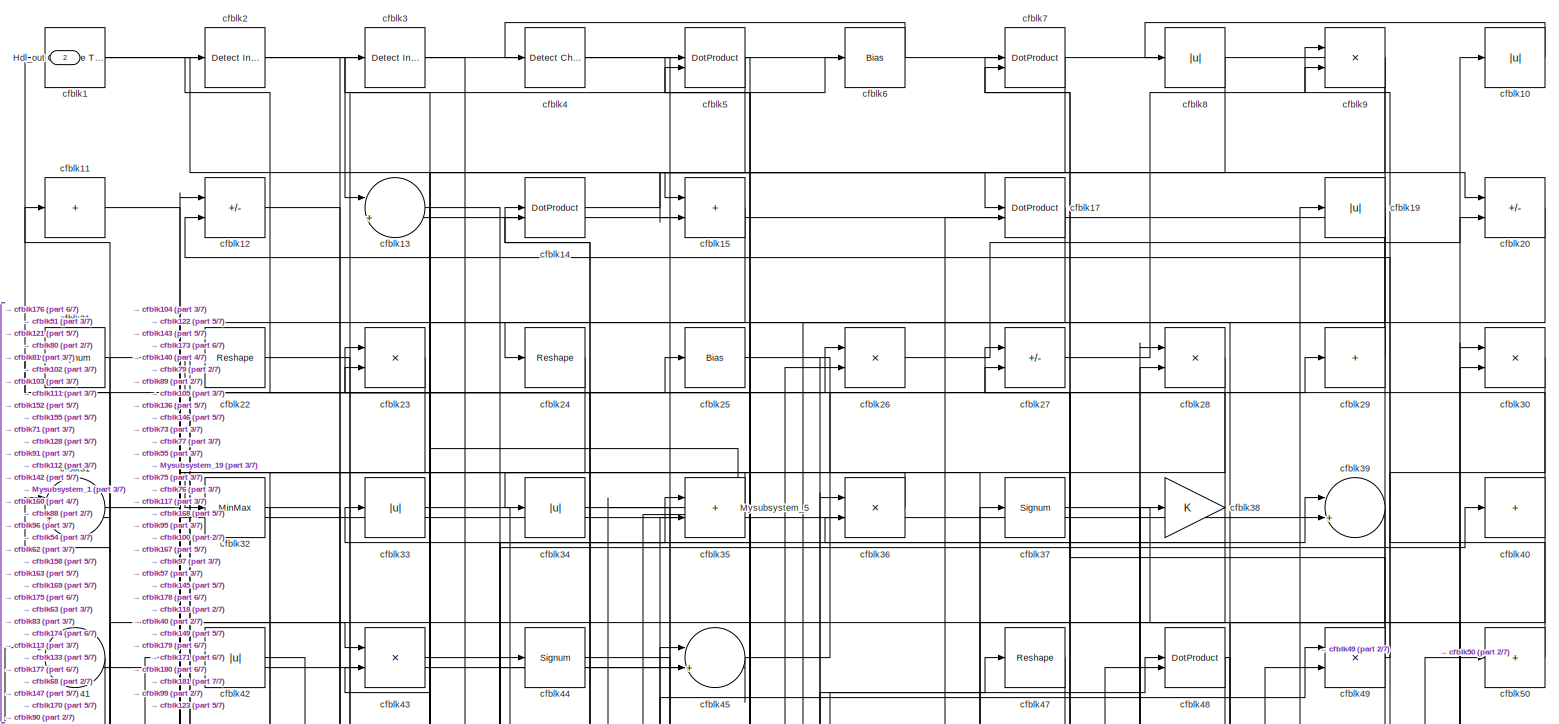
[diagram: root canvas - part 1/7, full width, top band]
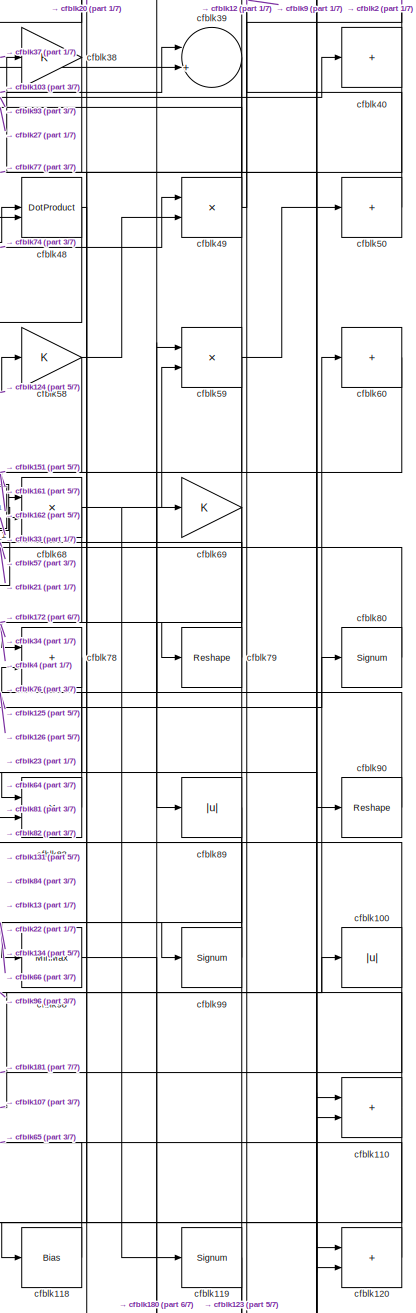
[diagram: root canvas - part 2/7, middle right region]
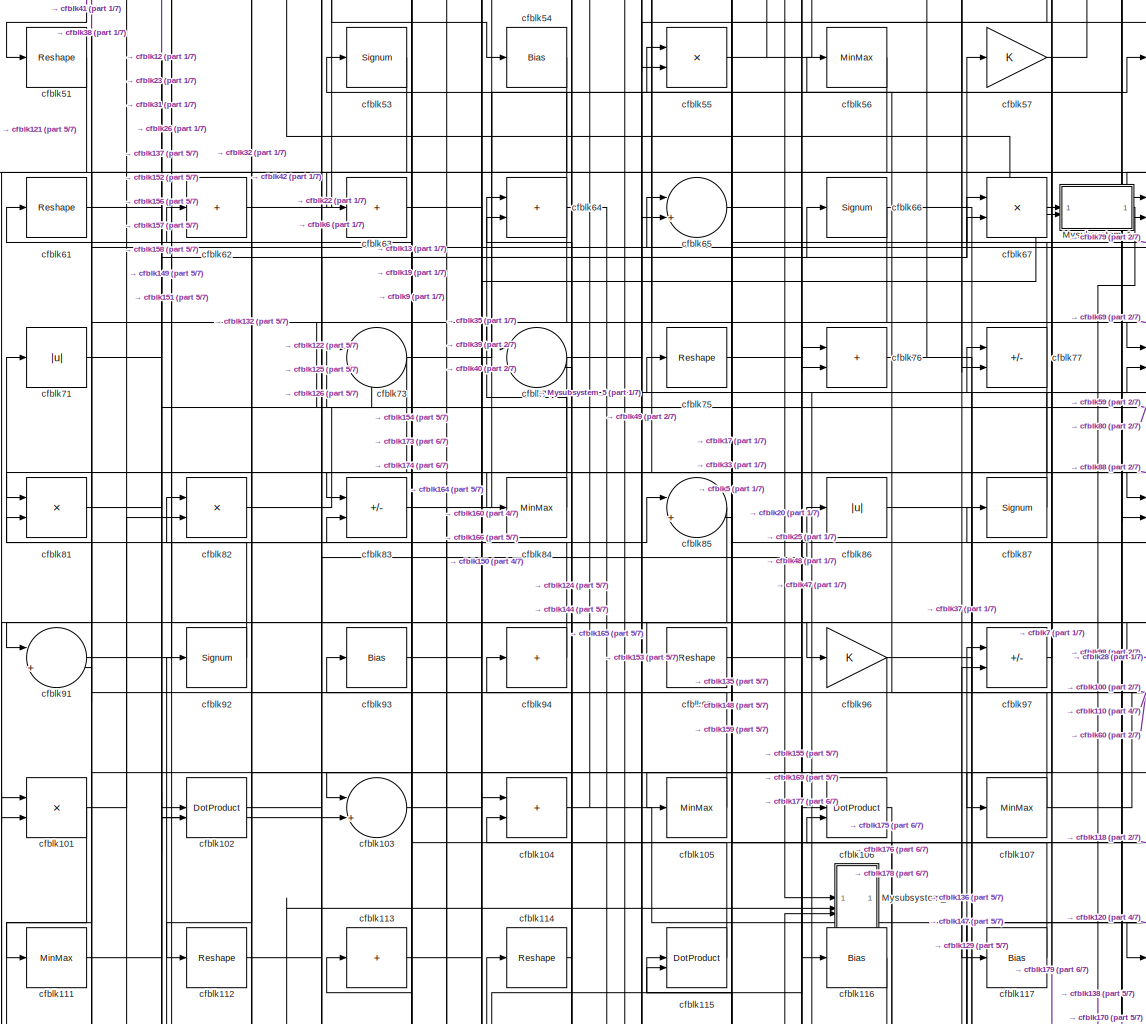
[diagram: root canvas - part 3/7, full width, middle band]
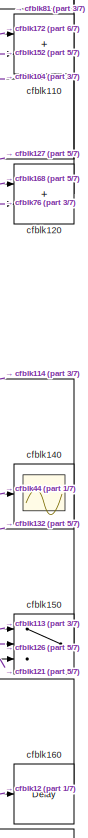
[diagram: root canvas - part 4/7, bottom right region]
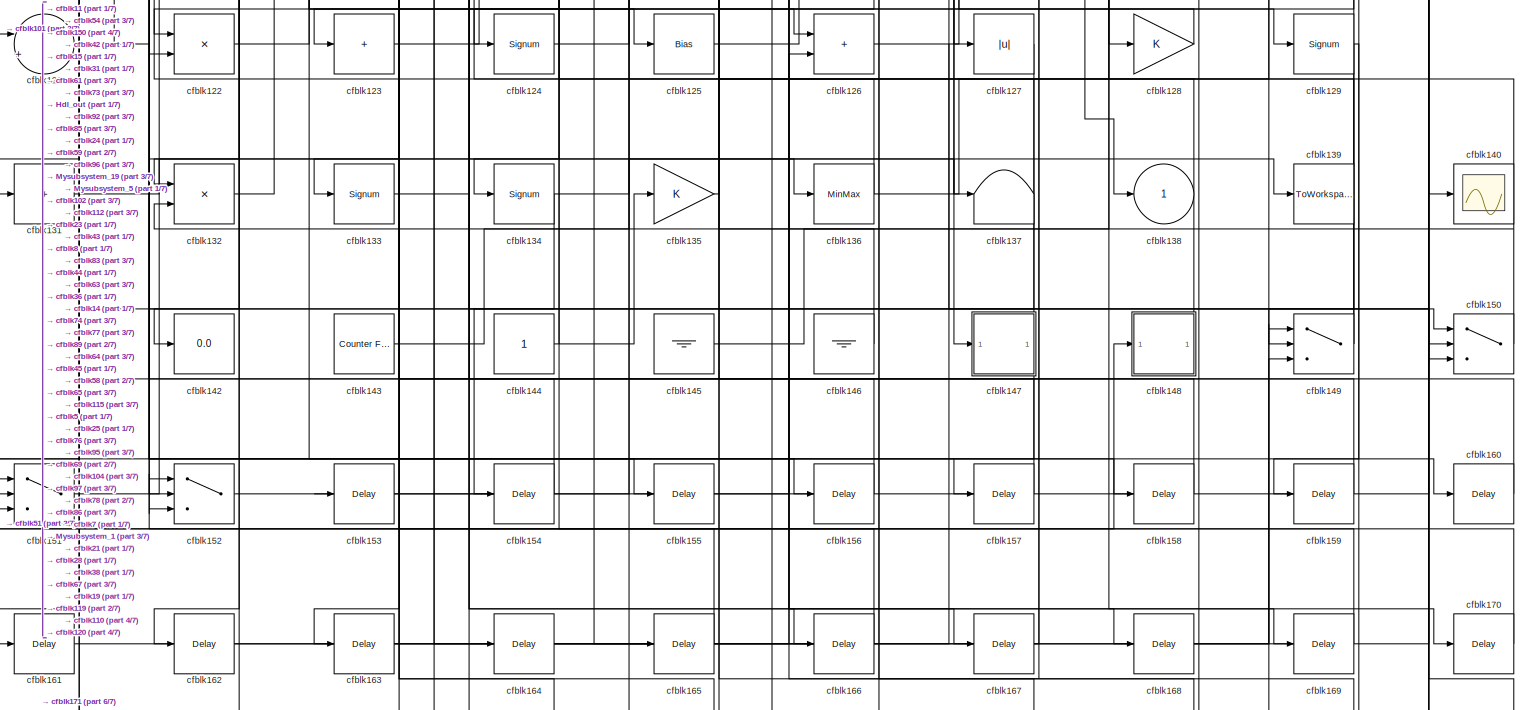
[diagram: root canvas - part 5/7, full width, bottom band]
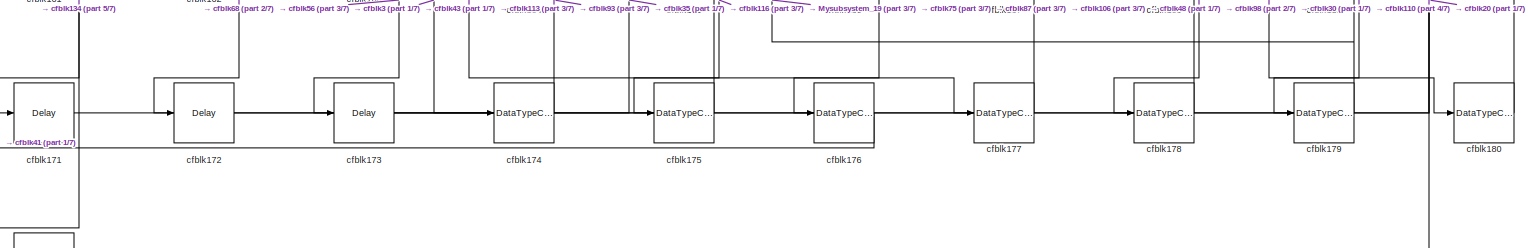
[diagram: root canvas - part 6/7, full width, bottom band]
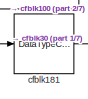
[diagram: root canvas - part 7/7, bottom left region]
MODEL slx_38ec1c95d7bd
KIND model
CONFIG AbsTol = auto
CONFIG EnableMultiTasking = off
CONFIG FixedStep = auto
CONFIG MaxStep = auto
CONFIG MinStep = auto
CONFIG RelTol = 1e-3
CONFIG SampleTimeConstraint = Unconstrained
CONFIG SolverName = VariableStepAuto
CONFIG StartTime = 0.0
CONFIG StopTime = 10.0
BLOCK [Outport] Hdl_out
  OutDataTypeStr = uint8
  Port = 2
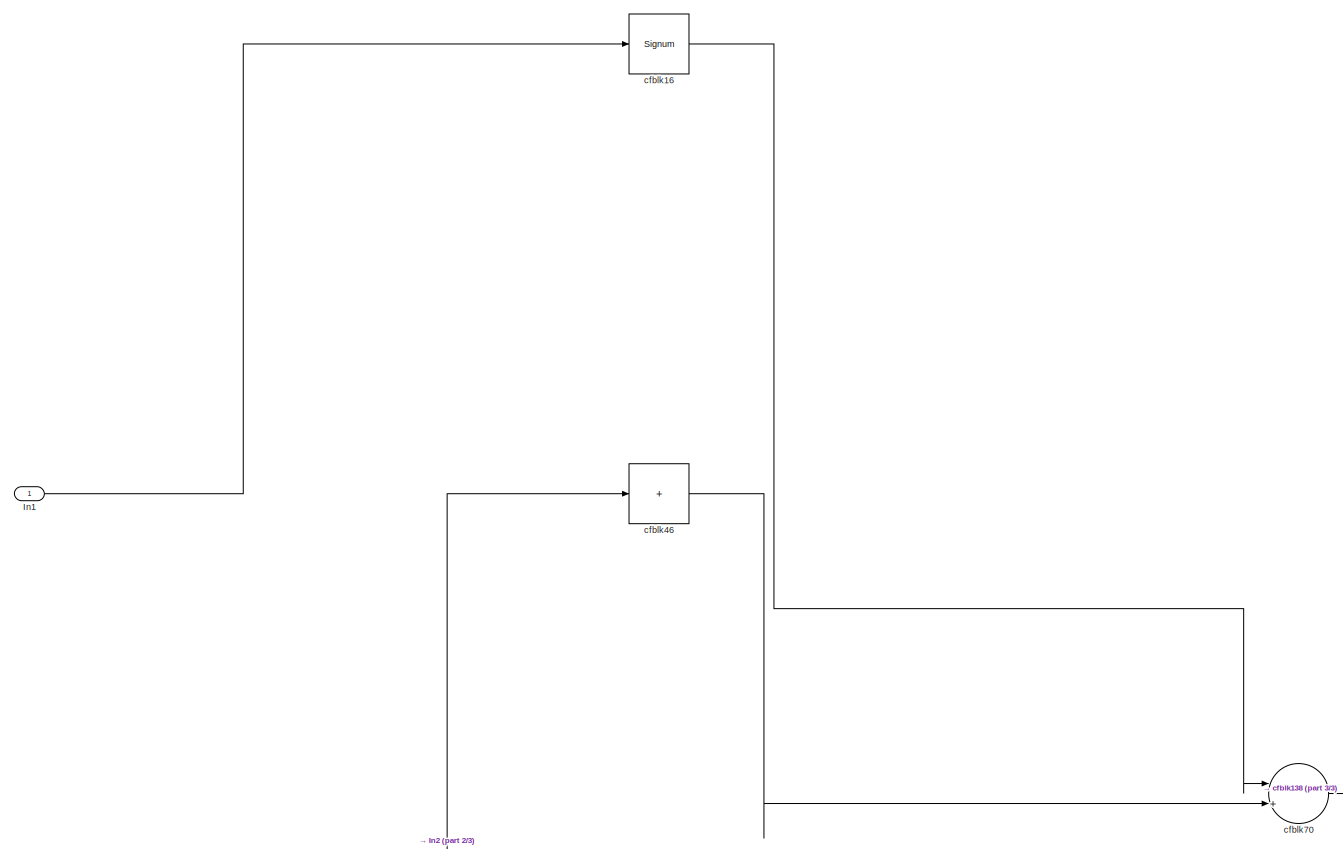
[diagram: Mysubsystem_1 - part 1/3, full width, top band]
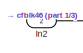
[diagram: Mysubsystem_1 - part 2/3, middle left region]
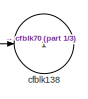
[diagram: Mysubsystem_1 - part 3/3, bottom right region]
BLOCK [SubSystem] Mysubsystem_1
  RTWFcnName = Mysubsystem_1
  RTWFcnNameOpts = User specified
  RTWFileNameOpts = Use function name
  RTWSystemCode = Reusable function
  TreatAsAtomicUnit = on
BLOCK [Inport] Mysubsystem_1/In1
BLOCK [Inport] Mysubsystem_1/In2
  Port = 2
BLOCK [Outport] Mysubsystem_1/cfblk138
  VectorParamsAs1DForOutWhenUnconnected = off
BLOCK [Signum] Mysubsystem_1/cfblk16
BLOCK [Sum] Mysubsystem_1/cfblk46
  IconShape = rectangular
  Inputs = +
BLOCK [Sum] Mysubsystem_1/cfblk70
  Inputs = |++
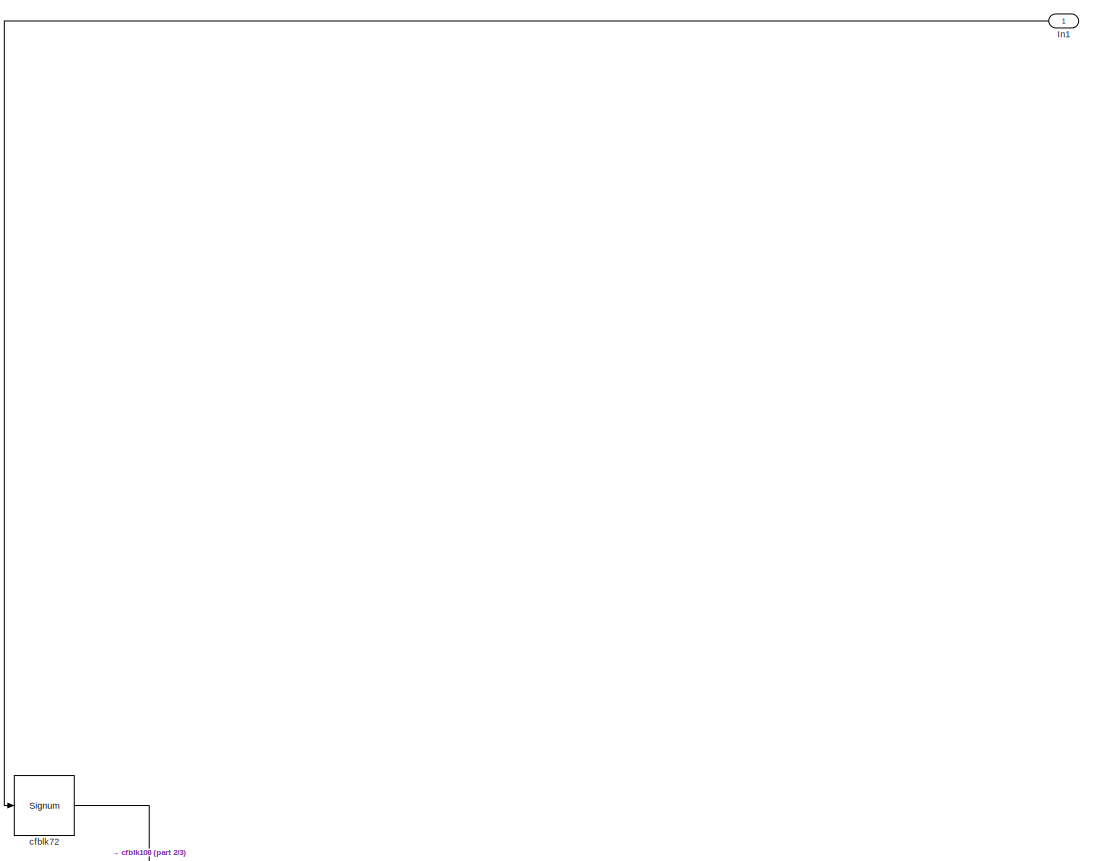
[diagram: Mysubsystem_19 - part 1/3, top center region]
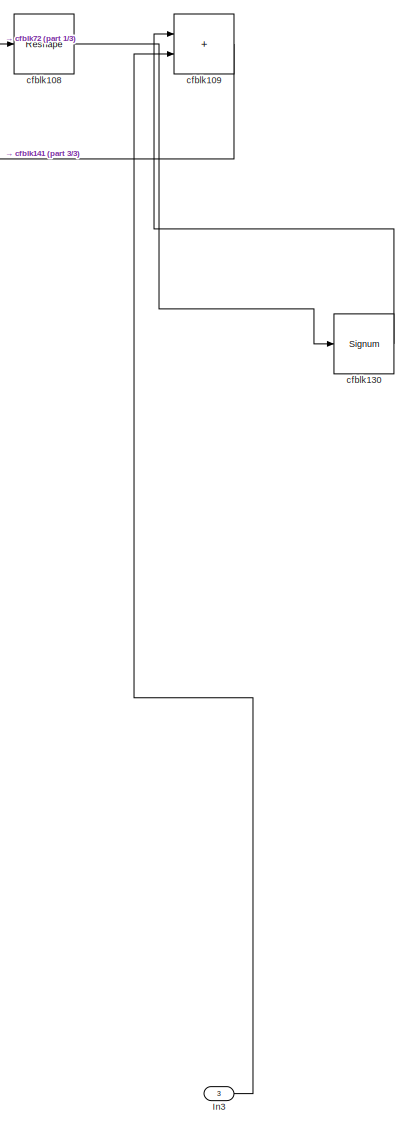
[diagram: Mysubsystem_19 - part 2/3, bottom right region]
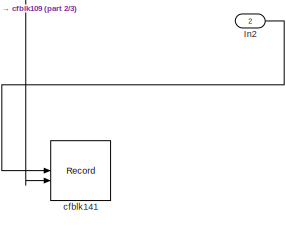
[diagram: Mysubsystem_19 - part 3/3, bottom left region]
BLOCK [SubSystem] Mysubsystem_19
  RTWFcnName = Mysubsystem_19
  RTWFcnNameOpts = User specified
  RTWFileNameOpts = Use function name
  RTWSystemCode = Reusable function
  TreatAsAtomicUnit = on
BLOCK [Inport] Mysubsystem_19/In1
BLOCK [Inport] Mysubsystem_19/In2
  Port = 2
BLOCK [Inport] Mysubsystem_19/In3
  Port = 3
BLOCK [Reshape] Mysubsystem_19/cfblk108
BLOCK [Sum] Mysubsystem_19/cfblk109
  IconShape = rectangular
BLOCK [Signum] Mysubsystem_19/cfblk130
BLOCK [Record] Mysubsystem_19/cfblk141
  CompatibilityTag = XY
  FileSettingsInternal = {"entries":[{"content":{"excelSettings":{"content":{},"type":"Streamout.ExcelSettings"}},"type":"Streamout.FileSettingStorage","uuid":""}],"packageUris":["http:\/\/schema.mathworks.com\/mf0\/streamout_blocks\/R2020a"],"version":"1.0"}
  Layout = [1 1]
  SignalsInternal = {"entries":[{"content":{},"type":"RecordBlkView.InputSignals","uuid":""}],"packageUris":["http:\/\/schema.mathworks.com\/mf0\/streamout_blocks\/R2020a"],"version":"1.0"}
  VisualizationBindings = {"xyplotplugin":{"info":[{"series":[],"subplotID":1}]}}
  st = -1
BLOCK [Signum] Mysubsystem_19/cfblk72
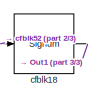
[diagram: Mysubsystem_5 - part 1/3, top right region]
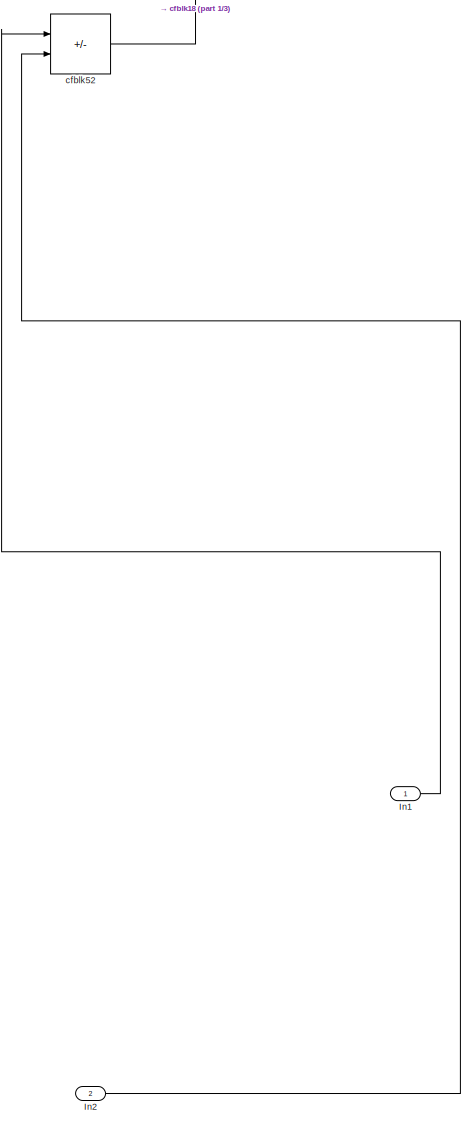
[diagram: Mysubsystem_5 - part 2/3, middle left region]
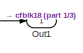
[diagram: Mysubsystem_5 - part 3/3, bottom left region]
BLOCK [SubSystem] Mysubsystem_5
  RTWFcnName = Mysubsystem_5
  RTWFcnNameOpts = User specified
  RTWFileNameOpts = Use function name
  RTWSystemCode = Reusable function
  TreatAsAtomicUnit = on
BLOCK [Inport] Mysubsystem_5/In1
BLOCK [Inport] Mysubsystem_5/In2
  Port = 2
BLOCK [Outport] Mysubsystem_5/Out1
BLOCK [Signum] Mysubsystem_5/cfblk18
BLOCK [Sum] Mysubsystem_5/cfblk52
  IconShape = rectangular
  Inputs = +-
BLOCK [Reference] cfblk1  REF=hdlsllib/Logic and Bit
Operations/Compare
To Constant
  SourceBlock = hdlsllib/Logic and Bit\nOperations/Compare\nTo Constant
  SourceType = Compare To Constant
BLOCK [Abs] cfblk10
  OutDataTypeStr = uint8
  SaturateOnIntegerOverflow = off
BLOCK [Abs] cfblk100
  OutDataTypeStr = uint8
  SaturateOnIntegerOverflow = off
BLOCK [Product] cfblk101
  Inputs = */
  OutDataTypeStr = uint8
  RndMeth = Zero
  SaturateOnIntegerOverflow = on
BLOCK [DotProduct] cfblk102
  OutDataTypeStr = uint8
BLOCK [Sum] cfblk103
  Inputs = |++
  OutDataTypeStr = uint8
BLOCK [Sum] cfblk104
  IconShape = rectangular
  OutDataTypeStr = uint8
BLOCK [MinMax] cfblk105
  OutDataTypeStr = uint8
BLOCK [DotProduct] cfblk106
  OutDataTypeStr = uint8
BLOCK [MinMax] cfblk107
  OutDataTypeStr = uint8
BLOCK [Sum] cfblk11
  IconShape = rectangular
  Inputs = +
  OutDataTypeStr = uint8
BLOCK [Sum] cfblk110
  IconShape = rectangular
  OutDataTypeStr = uint8
BLOCK [MinMax] cfblk111
  OutDataTypeStr = uint8
BLOCK [Reshape] cfblk112
BLOCK [Sum] cfblk113
  IconShape = rectangular
  Inputs = +
  OutDataTypeStr = uint8
BLOCK [Reshape] cfblk114
BLOCK [DotProduct] cfblk115
  OutDataTypeStr = uint8
BLOCK [Bias] cfblk116
  Bias = 0.0
  SaturateOnIntegerOverflow = off
BLOCK [Bias] cfblk117
  Bias = 0.0
  SaturateOnIntegerOverflow = off
BLOCK [Bias] cfblk118
  Bias = 0.0
  SaturateOnIntegerOverflow = off
BLOCK [Signum] cfblk119
BLOCK [Sum] cfblk12
  IconShape = rectangular
  Inputs = +-
  OutDataTypeStr = uint8
BLOCK [Sum] cfblk120
  IconShape = rectangular
  OutDataTypeStr = uint8
BLOCK [Sum] cfblk121
  Inputs = |++
  OutDataTypeStr = uint8
BLOCK [Product] cfblk122
  Inputs = */
  OutDataTypeStr = uint8
  RndMeth = Zero
  SaturateOnIntegerOverflow = on
BLOCK [Sum] cfblk123
  IconShape = rectangular
  Inputs = +
  OutDataTypeStr = uint8
BLOCK [Signum] cfblk124
BLOCK [Bias] cfblk125
  Bias = 0.0
  SaturateOnIntegerOverflow = off
BLOCK [Sum] cfblk126
  IconShape = rectangular
  OutDataTypeStr = uint8
BLOCK [Abs] cfblk127
  OutDataTypeStr = uint8
  SaturateOnIntegerOverflow = off
BLOCK [Gain] cfblk128
  OutDataTypeStr = uint8
BLOCK [Signum] cfblk129
BLOCK [Sum] cfblk13
  Inputs = |++
  OutDataTypeStr = uint8
BLOCK [Sum] cfblk131
  IconShape = rectangular
  Inputs = +
  OutDataTypeStr = uint8
BLOCK [Product] cfblk132
  Inputs = */
  OutDataTypeStr = uint8
  RndMeth = Zero
  SaturateOnIntegerOverflow = on
BLOCK [Signum] cfblk133
BLOCK [Signum] cfblk134
BLOCK [Gain] cfblk135
  OutDataTypeStr = uint8
BLOCK [MinMax] cfblk136
  OutDataTypeStr = uint8
BLOCK [Terminator] cfblk137
BLOCK [Outport] cfblk138
  OutDataTypeStr = uint8
  VectorParamsAs1DForOutWhenUnconnected = off
BLOCK [ToWorkspace] cfblk139
  MaxDataPoints = inf
  SampleTime = -1
  SaveFormat = Timeseries
  VariableName = simout
BLOCK [DotProduct] cfblk14
  OutDataTypeStr = uint8
BLOCK [Scope] cfblk140
  Floating = off
  NumInputPorts = 1
  ScopeSpecificationString = Simulink.scopes.TimeScopeBlockCfg('CurrentConfiguration', extmgr.ConfigurationSet(extmgr.Configuration('Core','General UI',true),extmgr.Configuration('Core','Source UI',true),extmgr.Configuration('Sources','WiredSimulink',true,'DataLoggingVariableName','ScopeData2','DataLoggingSaveFormat','Array','DataLoggingLimitDataPoints',true,'DataLoggingDecimation','1'),extmgr.Configuration('Visuals','Time Do...<+868ch>
BLOCK [Display] cfblk142
  Decimation = 1
BLOCK [Reference] cfblk143  REF=hdlsllib/Sources/Counter
Free-Running
  SourceBlock = hdlsllib/Sources/Counter\nFree-Running
  SourceType = Counter Free-Running
BLOCK [Constant] cfblk144
  OutDataTypeStr = uint8
  SampleTime = -1
BLOCK [Ground] cfblk145
BLOCK [Ground] cfblk146
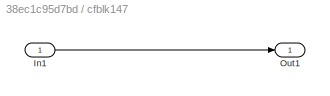
BLOCK [SubSystem] cfblk147
  LibrarySourceBlock = hdlsllib/Ports &\nSubsystems/Subsystem
BLOCK [Inport] cfblk147/In1
BLOCK [Outport] cfblk147/Out1
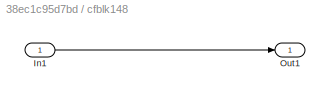
BLOCK [SubSystem] cfblk148
  LibrarySourceBlock = hdlsllib/Ports &\nSubsystems/Subsystem
BLOCK [Inport] cfblk148/In1
BLOCK [Outport] cfblk148/Out1
BLOCK [Switch] cfblk149
  InputSameDT = off
  OutDataTypeStr = uint8
  SaturateOnIntegerOverflow = off
BLOCK [Sum] cfblk15
  IconShape = rectangular
  OutDataTypeStr = uint8
BLOCK [Switch] cfblk150
  InputSameDT = off
  OutDataTypeStr = uint8
  SaturateOnIntegerOverflow = off
BLOCK [Switch] cfblk151
  InputSameDT = off
  OutDataTypeStr = uint8
  SaturateOnIntegerOverflow = off
BLOCK [Switch] cfblk152
  InputSameDT = off
  OutDataTypeStr = uint8
  SaturateOnIntegerOverflow = off
BLOCK [Delay] cfblk153
  InputPortMap = u0
  SampleTime = 1
BLOCK [Delay] cfblk154
  InputPortMap = u0
  SampleTime = 1
BLOCK [Delay] cfblk155
  InputPortMap = u0
  SampleTime = 1
BLOCK [Delay] cfblk156
  InputPortMap = u0
  SampleTime = 1
BLOCK [Delay] cfblk157
  InputPortMap = u0
  SampleTime = 1
BLOCK [Delay] cfblk158
  InputPortMap = u0
  SampleTime = 1
BLOCK [Delay] cfblk159
  InputPortMap = u0
  SampleTime = 1
BLOCK [Delay] cfblk160
  InputPortMap = u0
  SampleTime = 1
BLOCK [Delay] cfblk161
  InputPortMap = u0
  SampleTime = 1
BLOCK [Delay] cfblk162
  InputPortMap = u0
  SampleTime = 1
BLOCK [Delay] cfblk163
  InputPortMap = u0
  SampleTime = 1
BLOCK [Delay] cfblk164
  InputPortMap = u0
  SampleTime = 1
BLOCK [Delay] cfblk165
  InputPortMap = u0
  SampleTime = 1
BLOCK [Delay] cfblk166
  InputPortMap = u0
  SampleTime = 1
BLOCK [Delay] cfblk167
  InputPortMap = u0
  SampleTime = 1
BLOCK [Delay] cfblk168
  InputPortMap = u0
  SampleTime = 1
BLOCK [Delay] cfblk169
  InputPortMap = u0
  SampleTime = 1
BLOCK [DotProduct] cfblk17
  OutDataTypeStr = uint8
BLOCK [Delay] cfblk170
  InputPortMap = u0
  SampleTime = 1
BLOCK [Delay] cfblk171
  InputPortMap = u0
  SampleTime = 1
BLOCK [Delay] cfblk172
  InputPortMap = u0
  SampleTime = 1
BLOCK [Delay] cfblk173
  InputPortMap = u0
  SampleTime = 1
BLOCK [DataTypeConversion] cfblk174
  OutDataTypeStr = uint8
  RndMeth = Floor
  SaturateOnIntegerOverflow = off
BLOCK [DataTypeConversion] cfblk175
  OutDataTypeStr = uint8
  RndMeth = Floor
  SaturateOnIntegerOverflow = off
BLOCK [DataTypeConversion] cfblk176
  OutDataTypeStr = uint8
  RndMeth = Floor
  SaturateOnIntegerOverflow = off
BLOCK [DataTypeConversion] cfblk177
  OutDataTypeStr = uint8
  RndMeth = Floor
  SaturateOnIntegerOverflow = off
BLOCK [DataTypeConversion] cfblk178
  OutDataTypeStr = uint8
  RndMeth = Floor
  SaturateOnIntegerOverflow = off
BLOCK [DataTypeConversion] cfblk179
  OutDataTypeStr = uint8
  RndMeth = Floor
  SaturateOnIntegerOverflow = off
BLOCK [DataTypeConversion] cfblk180
  OutDataTypeStr = uint8
  RndMeth = Floor
  SaturateOnIntegerOverflow = off
BLOCK [DataTypeConversion] cfblk181
  OutDataTypeStr = uint8
  RndMeth = Floor
  SaturateOnIntegerOverflow = off
BLOCK [Abs] cfblk19
  OutDataTypeStr = uint8
  SaturateOnIntegerOverflow = off
BLOCK [Reference] cfblk2  REF=simulink/Logic and Bit
Operations/Detect
Increase
  LibrarySourceBlock = hdlsllib/Logic and Bit\nOperations/Detect\nIncrease
  SourceBlock = simulink/Logic and Bit\nOperations/Detect\nIncrease
  SourceType = Detect Increase
BLOCK [Sum] cfblk20
  IconShape = rectangular
  Inputs = +-
  OutDataTypeStr = uint8
BLOCK [Signum] cfblk21
BLOCK [Reshape] cfblk22
BLOCK [Product] cfblk23
  Inputs = */
  OutDataTypeStr = uint8
  RndMeth = Zero
  SaturateOnIntegerOverflow = on
BLOCK [Reshape] cfblk24
BLOCK [Bias] cfblk25
  Bias = 0.0
  SaturateOnIntegerOverflow = off
BLOCK [Product] cfblk26
  Inputs = */
  OutDataTypeStr = uint8
  RndMeth = Zero
  SaturateOnIntegerOverflow = on
BLOCK [Sum] cfblk27
  IconShape = rectangular
  Inputs = +-
  OutDataTypeStr = uint8
BLOCK [Product] cfblk28
  Inputs = */
  OutDataTypeStr = uint8
  RndMeth = Zero
  SaturateOnIntegerOverflow = on
BLOCK [Sum] cfblk29
  IconShape = rectangular
  Inputs = +
  OutDataTypeStr = uint8
BLOCK [Reference] cfblk3  REF=simulink/Logic and Bit
Operations/Detect
Increase
  LibrarySourceBlock = hdlsllib/Logic and Bit\nOperations/Detect\nIncrease
  SourceBlock = simulink/Logic and Bit\nOperations/Detect\nIncrease
  SourceType = Detect Increase
BLOCK [Product] cfblk30
  Inputs = */
  OutDataTypeStr = uint8
  RndMeth = Zero
  SaturateOnIntegerOverflow = on
BLOCK [Sum] cfblk31
  Inputs = |++
  OutDataTypeStr = uint8
BLOCK [MinMax] cfblk32
  OutDataTypeStr = uint8
BLOCK [Abs] cfblk33
  OutDataTypeStr = uint8
  SaturateOnIntegerOverflow = off
BLOCK [Abs] cfblk34
  OutDataTypeStr = uint8
  SaturateOnIntegerOverflow = off
BLOCK [Sum] cfblk35
  IconShape = rectangular
  OutDataTypeStr = uint8
BLOCK [Product] cfblk36
  Inputs = */
  OutDataTypeStr = uint8
  RndMeth = Zero
  SaturateOnIntegerOverflow = on
BLOCK [Signum] cfblk37
BLOCK [Gain] cfblk38
  OutDataTypeStr = uint8
BLOCK [Sum] cfblk39
  Inputs = |++
  OutDataTypeStr = uint8
BLOCK [Reference] cfblk4  REF=simulink/Logic and Bit
Operations/Detect
Change
  LibrarySourceBlock = hdlsllib/Logic and Bit\nOperations/Detect\nChange
  SourceBlock = simulink/Logic and Bit\nOperations/Detect\nChange
  SourceType = Detect Change
BLOCK [Sum] cfblk40
  IconShape = rectangular
  Inputs = +
  OutDataTypeStr = uint8
BLOCK [Sum] cfblk41
  Inputs = |++
  OutDataTypeStr = uint8
BLOCK [Abs] cfblk42
  OutDataTypeStr = uint8
  SaturateOnIntegerOverflow = off
BLOCK [Product] cfblk43
  Inputs = */
  OutDataTypeStr = uint8
  RndMeth = Zero
  SaturateOnIntegerOverflow = on
BLOCK [Signum] cfblk44
BLOCK [Sum] cfblk45
  Inputs = |++
  OutDataTypeStr = uint8
BLOCK [Reshape] cfblk47
BLOCK [DotProduct] cfblk48
  OutDataTypeStr = uint8
BLOCK [Product] cfblk49
  Inputs = */
  OutDataTypeStr = uint8
  RndMeth = Zero
  SaturateOnIntegerOverflow = on
BLOCK [DotProduct] cfblk5
  OutDataTypeStr = uint8
BLOCK [Sum] cfblk50
  IconShape = rectangular
  Inputs = +
  OutDataTypeStr = uint8
BLOCK [Reshape] cfblk51
BLOCK [Signum] cfblk53
BLOCK [Bias] cfblk54
  Bias = 0.0
  SaturateOnIntegerOverflow = off
BLOCK [Product] cfblk55
  Inputs = */
  OutDataTypeStr = uint8
  RndMeth = Zero
  SaturateOnIntegerOverflow = on
BLOCK [MinMax] cfblk56
  OutDataTypeStr = uint8
BLOCK [Gain] cfblk57
  OutDataTypeStr = uint8
BLOCK [Gain] cfblk58
  OutDataTypeStr = uint8
BLOCK [Product] cfblk59
  Inputs = */
  OutDataTypeStr = uint8
  RndMeth = Zero
  SaturateOnIntegerOverflow = on
BLOCK [Bias] cfblk6
  Bias = 0.0
  SaturateOnIntegerOverflow = off
BLOCK [Sum] cfblk60
  IconShape = rectangular
  Inputs = +
  OutDataTypeStr = uint8
BLOCK [Reshape] cfblk61
BLOCK [Sum] cfblk62
  IconShape = rectangular
  Inputs = +
  OutDataTypeStr = uint8
BLOCK [Sum] cfblk63
  IconShape = rectangular
  Inputs = +
  OutDataTypeStr = uint8
BLOCK [Sum] cfblk64
  IconShape = rectangular
  OutDataTypeStr = uint8
BLOCK [Sum] cfblk65
  Inputs = |++
  OutDataTypeStr = uint8
BLOCK [Signum] cfblk66
BLOCK [Product] cfblk67
  Inputs = */
  OutDataTypeStr = uint8
  RndMeth = Zero
  SaturateOnIntegerOverflow = on
BLOCK [Product] cfblk68
  Inputs = */
  OutDataTypeStr = uint8
  RndMeth = Zero
  SaturateOnIntegerOverflow = on
BLOCK [Gain] cfblk69
  OutDataTypeStr = uint8
BLOCK [DotProduct] cfblk7
  OutDataTypeStr = uint8
BLOCK [Abs] cfblk71
  OutDataTypeStr = uint8
  SaturateOnIntegerOverflow = off
BLOCK [Sum] cfblk73
  Inputs = |++
  OutDataTypeStr = uint8
BLOCK [Sum] cfblk74
  Inputs = |++
  OutDataTypeStr = uint8
BLOCK [Reshape] cfblk75
BLOCK [Sum] cfblk76
  IconShape = rectangular
  OutDataTypeStr = uint8
BLOCK [Sum] cfblk77
  IconShape = rectangular
  Inputs = +-
  OutDataTypeStr = uint8
BLOCK [Sum] cfblk78
  IconShape = rectangular
  OutDataTypeStr = uint8
BLOCK [Reshape] cfblk79
BLOCK [Abs] cfblk8
  OutDataTypeStr = uint8
  SaturateOnIntegerOverflow = off
BLOCK [Signum] cfblk80
BLOCK [Product] cfblk81
  Inputs = */
  OutDataTypeStr = uint8
  RndMeth = Zero
  SaturateOnIntegerOverflow = on
BLOCK [Product] cfblk82
  Inputs = */
  OutDataTypeStr = uint8
  RndMeth = Zero
  SaturateOnIntegerOverflow = on
BLOCK [Sum] cfblk83
  IconShape = rectangular
  Inputs = +-
  OutDataTypeStr = uint8
BLOCK [MinMax] cfblk84
  OutDataTypeStr = uint8
BLOCK [Sum] cfblk85
  Inputs = |++
  OutDataTypeStr = uint8
BLOCK [Abs] cfblk86
  OutDataTypeStr = uint8
  SaturateOnIntegerOverflow = off
BLOCK [Signum] cfblk87
BLOCK [Product] cfblk88
  Inputs = */
  OutDataTypeStr = uint8
  RndMeth = Zero
  SaturateOnIntegerOverflow = on
BLOCK [Abs] cfblk89
  OutDataTypeStr = uint8
  SaturateOnIntegerOverflow = off
BLOCK [Product] cfblk9
  Inputs = */
  OutDataTypeStr = uint8
  RndMeth = Zero
  SaturateOnIntegerOverflow = on
BLOCK [Reshape] cfblk90
BLOCK [Sum] cfblk91
  Inputs = |++
  OutDataTypeStr = uint8
BLOCK [Signum] cfblk92
BLOCK [Bias] cfblk93
  Bias = 0.0
  SaturateOnIntegerOverflow = off
BLOCK [Sum] cfblk94
  IconShape = rectangular
  Inputs = +
  OutDataTypeStr = uint8
BLOCK [Reshape] cfblk95
BLOCK [Gain] cfblk96
  OutDataTypeStr = uint8
BLOCK [Sum] cfblk97
  IconShape = rectangular
  Inputs = +-
  OutDataTypeStr = uint8
BLOCK [MinMax] cfblk98
  OutDataTypeStr = uint8
BLOCK [Signum] cfblk99
LINE Mysubsystem_1/In1:1 -> Mysubsystem_1/cfblk16:1
LINE Mysubsystem_1/In2:1 -> Mysubsystem_1/cfblk46:1
LINE Mysubsystem_1/cfblk16:1 -> Mysubsystem_1/cfblk70:1
LINE Mysubsystem_1/cfblk46:1 -> Mysubsystem_1/cfblk70:2
LINE Mysubsystem_1/cfblk70:1 -> Mysubsystem_1/cfblk138:1
LINE Mysubsystem_19/In1:1 -> Mysubsystem_19/cfblk72:1
LINE Mysubsystem_19/In2:1 -> Mysubsystem_19/cfblk141:1
LINE Mysubsystem_19/In3:1 -> Mysubsystem_19/cfblk109:2
LINE Mysubsystem_19/cfblk108:1 -> Mysubsystem_19/cfblk130:1
LINE Mysubsystem_19/cfblk109:1 -> Mysubsystem_19/cfblk141:2
LINE Mysubsystem_19/cfblk130:1 -> Mysubsystem_19/cfblk109:1
LINE Mysubsystem_19/cfblk72:1 -> Mysubsystem_19/cfblk108:1
LINE Mysubsystem_1:1 -> cfblk138:1
LINE Mysubsystem_5/In1:1 -> Mysubsystem_5/cfblk52:1
LINE Mysubsystem_5/In2:1 -> Mysubsystem_5/cfblk52:2
LINE Mysubsystem_5/cfblk18:1 -> Mysubsystem_5/Out1:1
LINE Mysubsystem_5/cfblk52:1 -> Mysubsystem_5/cfblk18:1
LINE Mysubsystem_5:1 -> cfblk163:1
NET cfblk100:1 -> cfblk181:1, cfblk27:2
NET cfblk101:1 -> cfblk121:1, cfblk82:2
NET cfblk102:1 -> cfblk126:1, cfblk67:1
LINE cfblk103:1 -> cfblk39:1
NET cfblk104:1 -> Mysubsystem_5:1, cfblk147:1
LINE cfblk105:1 -> cfblk62:1
LINE cfblk106:1 -> cfblk176:1
NET cfblk107:1 -> cfblk56:1, cfblk60:1
LINE cfblk10:1 -> cfblk8:1
NET cfblk110:1 -> cfblk127:1, cfblk81:2
NET cfblk111:1 -> cfblk12:1, cfblk83:2
NET cfblk112:1 -> cfblk125:1, cfblk66:1
NET cfblk113:1 -> cfblk150:1, cfblk35:1
LINE cfblk114:1 -> cfblk94:1
LINE cfblk115:1 -> cfblk61:1
LINE cfblk116:1 -> cfblk175:1
LINE cfblk117:1 -> cfblk55:1
LINE cfblk118:1 -> cfblk65:1
LINE cfblk119:1 -> cfblk123:1
LINE cfblk11:1 -> cfblk43:1
LINE cfblk120:1 -> cfblk104:2
NET cfblk121:1 -> cfblk11:1, cfblk150:3, cfblk156:1, cfblk42:1
NET cfblk122:1 -> Mysubsystem_5:2, cfblk86:1
LINE cfblk123:1 -> cfblk36:1
LINE cfblk124:1 -> cfblk58:1
LINE cfblk125:1 -> cfblk69:1
NET cfblk126:1 -> cfblk150:2, cfblk78:2
LINE cfblk127:1 -> cfblk154:1
LINE cfblk128:1 -> cfblk122:1
NET cfblk129:1 -> cfblk149:2, cfblk159:1
LINE cfblk12:1 -> cfblk160:1
LINE cfblk131:1 -> cfblk136:1
LINE cfblk132:1 -> Mysubsystem_19:2
NET cfblk133:1 -> cfblk167:1, cfblk44:1
NET cfblk134:1 -> cfblk139:1, cfblk171:1
LINE cfblk135:1 -> cfblk115:2
NET cfblk136:1 -> cfblk19:1, cfblk28:2, cfblk5:2, cfblk97:1
NET cfblk13:1 -> cfblk83:1, cfblk88:2
LINE cfblk143:1 -> cfblk45:1
NET cfblk144:1 -> cfblk135:1, cfblk74:2
LINE cfblk145:1 -> cfblk38:1
LINE cfblk146:1 -> cfblk5:1
LINE cfblk147/In1:1 -> cfblk147/Out1:1
NET cfblk147:1 -> cfblk14:1, cfblk151:3
LINE cfblk148/In1:1 -> cfblk148/Out1:1
LINE cfblk148:1 -> cfblk115:1
NET cfblk149:1 -> Hdl_out:1, cfblk92:1
LINE cfblk14:1 -> cfblk17:1
NET cfblk150:1 -> cfblk114:1, cfblk132:2
LINE cfblk151:1 -> cfblk85:1
NET cfblk152:1 -> cfblk110:2, cfblk153:1
LINE cfblk153:1 -> cfblk65:2
LINE cfblk154:1 -> cfblk73:1
LINE cfblk155:1 -> cfblk76:1
LINE cfblk156:1 -> cfblk102:1
LINE cfblk157:1 -> cfblk121:2
LINE cfblk158:1 -> cfblk43:2
LINE cfblk159:1 -> cfblk85:2
NET cfblk15:1 -> cfblk152:3, cfblk24:1
LINE cfblk160:1 -> cfblk104:1
LINE cfblk161:1 -> cfblk149:1
LINE cfblk162:1 -> cfblk149:3
LINE cfblk163:1 -> cfblk126:2
LINE cfblk164:1 -> cfblk97:2
LINE cfblk165:1 -> cfblk101:1
LINE cfblk166:1 -> cfblk152:1
LINE cfblk167:1 -> cfblk7:2
LINE cfblk168:1 -> cfblk120:1
LINE cfblk169:1 -> cfblk23:2
LINE cfblk170:1 -> cfblk14:2
LINE cfblk171:1 -> cfblk20:2
LINE cfblk172:1 -> cfblk110:1
LINE cfblk173:1 -> cfblk35:2
NET cfblk174:1 -> cfblk113:1, cfblk93:1
LINE cfblk175:1 -> cfblk3:1
LINE cfblk176:1 -> cfblk41:1
LINE cfblk177:1 -> cfblk106:1
LINE cfblk178:1 -> cfblk106:2
NET cfblk179:1 -> Mysubsystem_19:3, cfblk75:1, cfblk87:1
LINE cfblk17:1 -> cfblk73:2
LINE cfblk180:1 -> cfblk30:1
LINE cfblk181:1 -> cfblk30:2
LINE cfblk19:1 -> cfblk103:1
LINE cfblk1:1 -> cfblk20:1
NET cfblk20:1 -> Mysubsystem_19:1, cfblk118:1
NET cfblk21:1 -> cfblk128:1, cfblk31:2
LINE cfblk22:1 -> cfblk54:1
LINE cfblk23:1 -> cfblk102:2
LINE cfblk24:1 -> cfblk142:1
NET cfblk25:1 -> cfblk117:1, cfblk168:1
LINE cfblk26:1 -> cfblk10:1
LINE cfblk27:1 -> cfblk9:1
LINE cfblk28:1 -> cfblk122:2
LINE cfblk29:1 -> cfblk13:2
NET cfblk2:1 -> cfblk13:1, cfblk88:1
LINE cfblk30:1 -> cfblk179:1
NET cfblk31:1 -> cfblk103:2, cfblk155:1
NET cfblk32:1 -> cfblk112:1, cfblk96:1
LINE cfblk33:1 -> cfblk68:2
LINE cfblk34:1 -> cfblk89:1
LINE cfblk35:1 -> cfblk32:1
LINE cfblk36:1 -> cfblk34:1
NET cfblk37:1 -> cfblk90:1, cfblk99:1
NET cfblk38:1 -> cfblk1:1, cfblk36:2, cfblk91:1
LINE cfblk39:1 -> cfblk77:2
LINE cfblk3:1 -> cfblk174:1
NET cfblk40:1 -> cfblk2:1, cfblk78:1
LINE cfblk41:1 -> cfblk51:1
LINE cfblk42:1 -> Mysubsystem_1:1
NET cfblk43:1 -> cfblk177:1, cfblk45:2
LINE cfblk44:1 -> cfblk140:1
NET cfblk45:1 -> cfblk29:1, cfblk41:2
LINE cfblk47:1 -> cfblk95:1
NET cfblk48:1 -> cfblk178:1, cfblk55:2
NET cfblk49:1 -> cfblk27:1, cfblk9:2
LINE cfblk4:1 -> cfblk79:1
LINE cfblk50:1 -> cfblk12:2
LINE cfblk51:1 -> cfblk148:1
LINE cfblk53:1 -> cfblk111:1
LINE cfblk54:1 -> cfblk151:1
NET cfblk55:1 -> cfblk26:2, cfblk47:1
LINE cfblk56:1 -> cfblk173:1
NET cfblk57:1 -> cfblk107:1, cfblk48:2
NET cfblk58:1 -> cfblk151:2, cfblk49:2
NET cfblk59:1 -> cfblk161:1, cfblk162:1, cfblk50:1
NET cfblk5:1 -> cfblk105:1, cfblk15:1
LINE cfblk60:1 -> cfblk68:1
NET cfblk61:1 -> cfblk137:1, cfblk157:1, cfblk158:1
LINE cfblk62:1 -> cfblk6:1
LINE cfblk63:1 -> cfblk166:1
NET cfblk64:1 -> cfblk165:1, cfblk53:1, cfblk74:1
LINE cfblk65:1 -> cfblk116:1
NET cfblk66:1 -> cfblk81:1, cfblk98:1
LINE cfblk67:1 -> cfblk170:1
NET cfblk68:1 -> cfblk119:1, cfblk172:1, cfblk59:2
LINE cfblk69:1 -> cfblk76:2
LINE cfblk6:1 -> cfblk4:1
NET cfblk71:1 -> cfblk25:1, cfblk67:2
NET cfblk73:1 -> cfblk152:2, cfblk37:1
NET cfblk74:1 -> cfblk49:1, cfblk91:2
LINE cfblk75:1 -> cfblk48:1
NET cfblk76:1 -> cfblk120:2, cfblk17:2
NET cfblk77:1 -> cfblk124:1, cfblk33:1
LINE cfblk78:1 -> cfblk131:1
LINE cfblk79:1 -> cfblk57:1
LINE cfblk7:1 -> cfblk15:2
LINE cfblk80:1 -> cfblk21:1
NET cfblk81:1 -> cfblk31:1, cfblk39:2, cfblk80:1
LINE cfblk82:1 -> cfblk59:1
NET cfblk83:1 -> Mysubsystem_1:2, cfblk164:1, cfblk28:1
LINE cfblk84:1 -> cfblk64:1
LINE cfblk85:1 -> cfblk101:2
LINE cfblk86:1 -> cfblk129:1
LINE cfblk87:1 -> cfblk77:1
NET cfblk88:1 -> cfblk64:2, cfblk84:1
LINE cfblk89:1 -> cfblk134:1
LINE cfblk8:1 -> cfblk133:1
LINE cfblk90:1 -> cfblk23:1
LINE cfblk91:1 -> cfblk26:1
LINE cfblk92:1 -> cfblk82:1
LINE cfblk93:1 -> cfblk40:1
LINE cfblk94:1 -> cfblk71:1
LINE cfblk95:1 -> cfblk169:1
NET cfblk96:1 -> cfblk100:1, cfblk132:1
LINE cfblk97:1 -> cfblk7:1
LINE cfblk98:1 -> cfblk180:1
LINE cfblk99:1 -> cfblk22:1
LINE cfblk9:1 -> cfblk63:1
note: NET lines group one-source signal fan-out (src -> all destinations, sorted); 1:1 wires keep LINE
